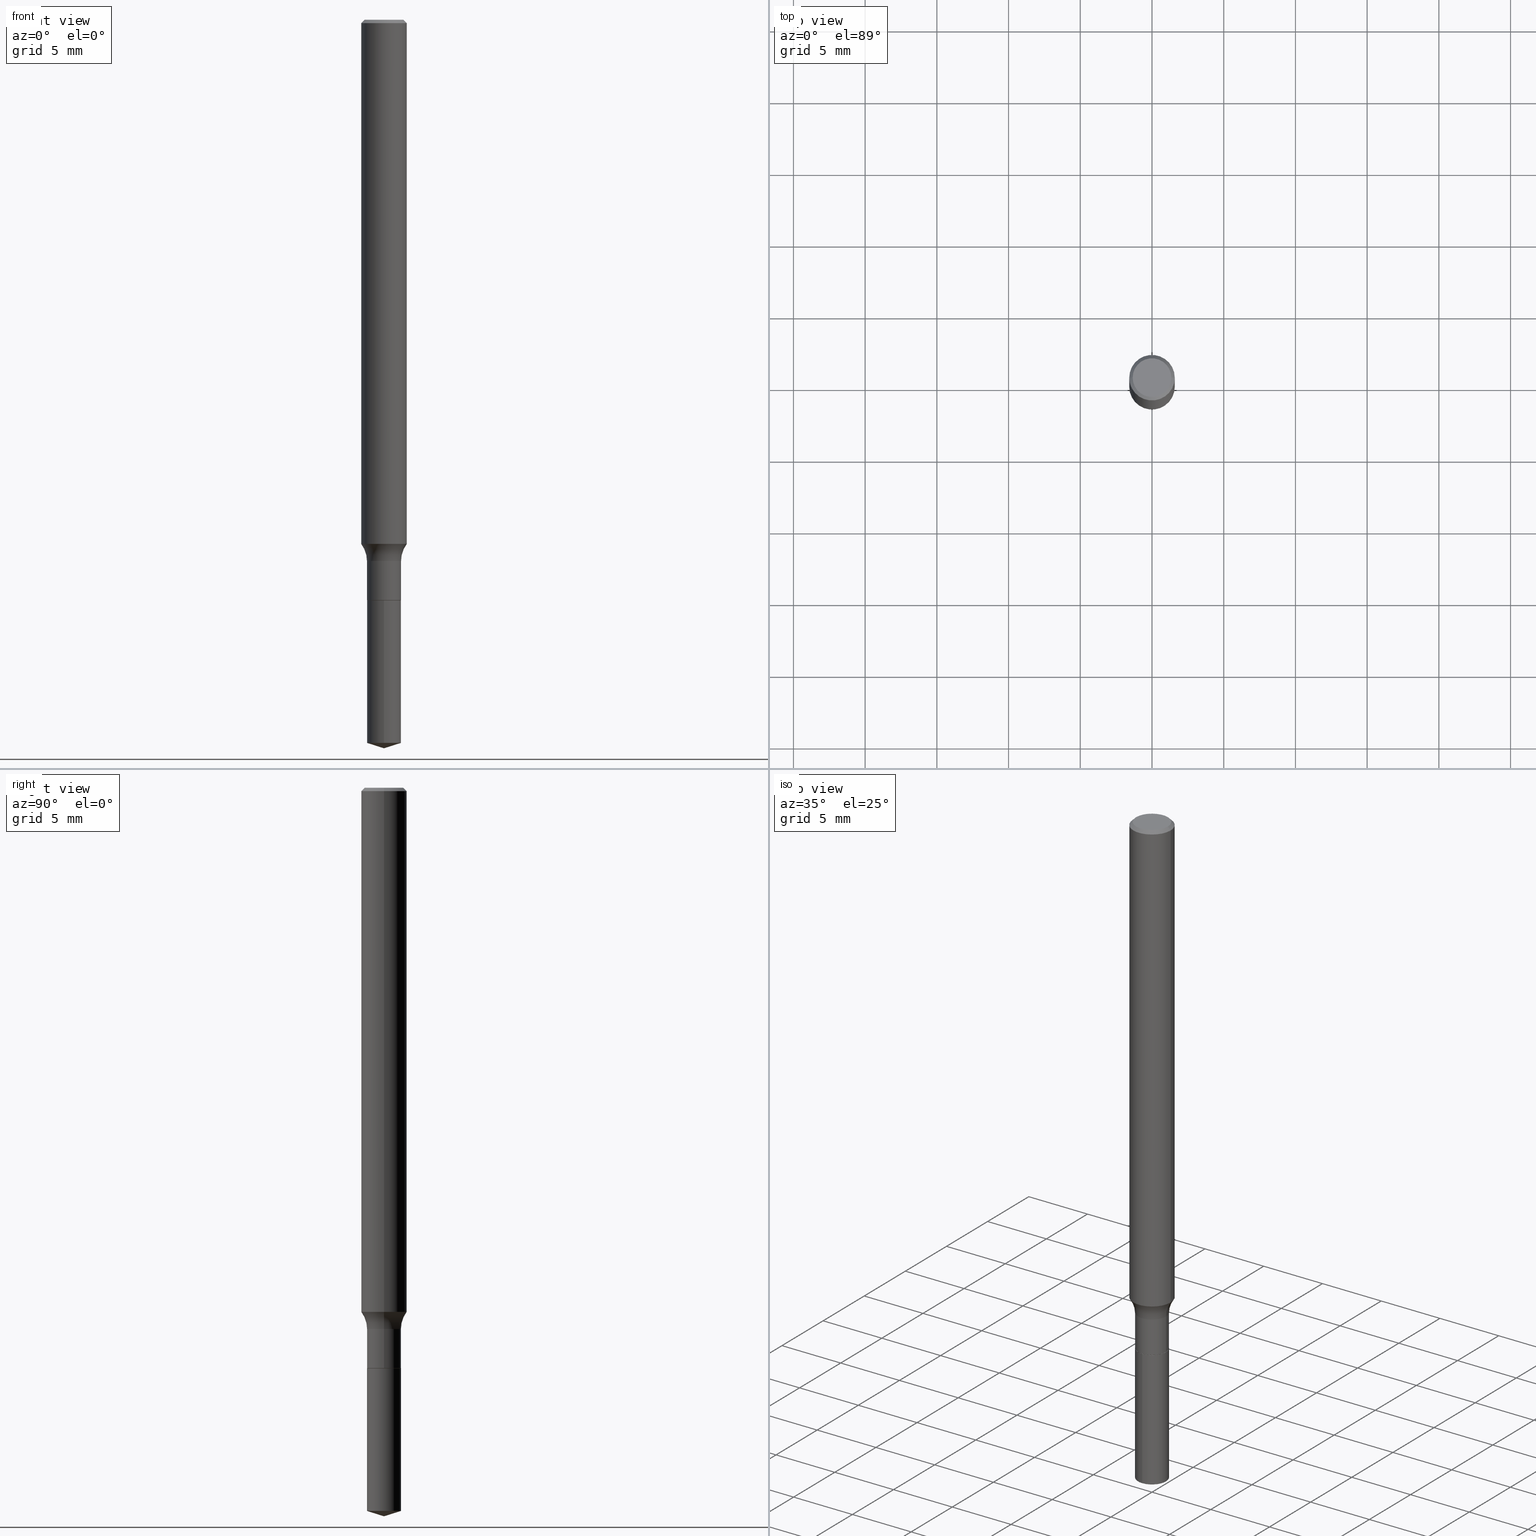
[diagram: canonical four-view strip — front | top / right | iso, engineering-drawing reading convention]
A machine part, canonical four-view strip (front | top / right | iso — engineering-drawing reading convention). The complete STEP part file that produces these views, byte-faithful:
ISO-10303-21;
HEADER;
FILE_DESCRIPTION (( 'STEP AP203' ),
    '1' );
FILE_NAME ('64510.STEP',
    '2024-04-19T15:42:12',
    ( '' ),
    ( '' ),
    'SwSTEP 2.0',
    'SolidWorks 2023',
    '' );
FILE_SCHEMA (( 'CONFIG_CONTROL_DESIGN' ));
ENDSEC;

DATA;
#1 = FACE_OUTER_BOUND ( 'NONE', #110, .T. ) ;
#2 = ORIENTED_EDGE ( 'NONE', *, *, #424, .F. ) ;
#3 = VECTOR ( 'NONE', #296, 39.37007874015748143 ) ;
#4 = VECTOR ( 'NONE', #304, 39.37007874015748143 ) ;
#5 = PERSON_AND_ORGANIZATION ( #410, #361 ) ;
#6 = CARTESIAN_POINT ( 'NONE',  ( 0.000000000000000000, 0.000000000000000000, 0.000000000000000000 ) ) ;
#7 = LOCAL_TIME ( 11, 42, 12.00000000000000000, #295 ) ;
#8 = LINE ( 'NONE', #15, #97 ) ;
#9 =( CONVERSION_BASED_UNIT ( 'INCH', #123 ) LENGTH_UNIT ( ) NAMED_UNIT ( #389 ) );
#10 = APPLICATION_CONTEXT ( 'configuration controlled 3d designs of mechanical parts and assemblies' ) ;
#11 = CLOSED_SHELL ( 'NONE', ( #108, #467, #93, #180, #133, #438, #324, #113, #57, #343, #442, #52 ) ) ;
#12 = AXIS2_PLACEMENT_3D ( 'NONE', #392, #436, #126 ) ;
#13 = CYLINDRICAL_SURFACE ( 'NONE', #12, 0.04674999999999999989 ) ;
#14 = CARTESIAN_POINT ( 'NONE',  ( 4.890909223419383260E-29, -6.983003332279764889E-15, -2.000000000000000000 ) ) ;
#15 = CARTESIAN_POINT ( 'NONE',  ( 0.04624999999999999944, -5.886637537289542748E-15, -1.593500000000000139 ) ) ;
#16 = EDGE_CURVE ( 'NONE', #233, #404, #164, .T. ) ;
#17 = CIRCLE ( 'NONE', #61, 0.06250000000000000000 ) ;
#18 = LOCAL_TIME ( 11, 42, 12.00000000000000000, #32 ) ;
#19 = PERSON_AND_ORGANIZATION ( #410, #361 ) ;
#20 = EDGE_LOOP ( 'NONE', ( #63, #370, #281, #320 ) ) ;
#21 = APPROVAL ( #489, 'UNSPECIFIED' ) ;
#22 = ORIENTED_EDGE ( 'NONE', *, *, #227, .T. ) ;
#23 = ORIENTED_EDGE ( 'NONE', *, *, #196, .T. ) ;
#24 = ORIENTED_EDGE ( 'NONE', *, *, #443, .F. ) ;
#25 = ORIENTED_EDGE ( 'NONE', *, *, #16, .T. ) ;
#26 = ORIENTED_EDGE ( 'NONE', *, *, #475, .F. ) ;
#27 = CIRCLE ( 'NONE', #78, 0.05312499999999999861 ) ;
#28 = EDGE_CURVE ( 'NONE', #325, #134, #415, .T. ) ;
#29 = ORIENTED_EDGE ( 'NONE', *, *, #122, .T. ) ;
#30 = VERTEX_POINT ( 'NONE', #256 ) ;
#31 = DIRECTION ( 'NONE',  ( -6.982962677686266711E-15, -1.000000000000000000, 5.843525120137461189E-15 ) ) ;
#32 = COORDINATED_UNIVERSAL_TIME_OFFSET ( 5, 0, .BEHIND. ) ;
#33 = FACE_OUTER_BOUND ( 'NONE', #168, .T. ) ;
#34 = PERSON_AND_ORGANIZATION ( #410, #361 ) ;
#35 = CARTESIAN_POINT ( 'NONE',  ( 3.895631808252923370E-29, -5.561929772777131251E-15, -1.593000000000000194 ) ) ;
#36 = FACE_OUTER_BOUND ( 'NONE', #277, .T. ) ;
#37 = VECTOR ( 'NONE', #393, 39.37007874015748143 ) ;
#38 = DIRECTION ( 'NONE',  ( 7.105427357601001859E-15, 1.000000000000000000, -3.491481338843145583E-15 ) ) ;
#39 = DIRECTION ( 'NONE',  ( -6.982962677686267499E-15, -1.000000000000000000, 3.500519750498745453E-15 ) ) ;
#40 = CARTESIAN_POINT ( 'NONE',  ( 0.04674999999999999989, -5.888383277958965040E-15, -1.593000000000000194 ) ) ;
#41 = FACE_OUTER_BOUND ( 'NONE', #54, .T. ) ;
#42 = ORIENTED_EDGE ( 'NONE', *, *, #100, .F. ) ;
#43 = CIRCLE ( 'NONE', #151, 0.04674999999999999295 ) ;
#44 = DESIGN_CONTEXT ( 'detailed design', #448, 'design' ) ;
#45 = DIRECTION ( 'NONE',  ( 1.000000000000000000, -6.982962677686272233E-15, 0.000000000000000000 ) ) ;
#46 = CARTESIAN_POINT ( 'NONE',  ( 3.896854542656015611E-29, -5.563675513446552755E-15, -1.593500000000000139 ) ) ;
#47 = EDGE_CURVE ( 'NONE', #59, #183, #77, .T. ) ;
#48 = AXIS2_PLACEMENT_3D ( 'NONE', #98, #458, #73 ) ;
#49 = LINE ( 'NONE', #347, #37 ) ;
#50 = DIRECTION ( 'NONE',  ( -2.445468806185136597E-29, 3.491481338843145583E-15, 1.000000000000000000 ) ) ;
#51 = CARTESIAN_POINT ( 'NONE',  ( 0.06250000000000000000, -4.615137624123754923E-16, -0.009375000000000074246 ) ) ;
#52 = ADVANCED_FACE ( 'NONE', ( #64 ), #229, .T. ) ;
#53 = ORIENTED_EDGE ( 'NONE', *, *, #391, .T. ) ;
#54 = EDGE_LOOP ( 'NONE', ( #26, #278, #228, #411 ) ) ;
#55 = AXIS2_PLACEMENT_3D ( 'NONE', #193, #344, #45 ) ;
#56 = ORIENTED_EDGE ( 'NONE', *, *, #382, .T. ) ;
#57 = ADVANCED_FACE ( 'NONE', ( #41 ), #359, .T. ) ;
#58 = DIRECTION ( 'NONE',  ( -2.445454611709691350E-29, 3.491501666139882444E-15, 1.000000000000000000 ) ) ;
#59 = VERTEX_POINT ( 'NONE', #40 ) ;
#60 = ORIENTED_EDGE ( 'NONE', *, *, #169, .T. ) ;
#61 = AXIS2_PLACEMENT_3D ( 'NONE', #62, #173, #138 ) ;
#62 = CARTESIAN_POINT ( 'NONE',  ( 2.292627005798583689E-31, -3.273263755165475115E-17, -0.009375000000000074246 ) ) ;
#63 = ORIENTED_EDGE ( 'NONE', *, *, #223, .F. ) ;
#64 = FACE_OUTER_BOUND ( 'NONE', #315, .T. ) ;
#65 = CARTESIAN_POINT ( 'NONE',  ( 3.633966645991112620E-29, -5.188341269520914499E-15, -1.485999999999999988 ) ) ;
#66 = DATE_AND_TIME ( #101, #152 ) ;
#67 = DIRECTION ( 'NONE',  ( 1.000000000000000000, -6.982962677686265133E-15, 0.000000000000000000 ) ) ;
#68 = DIRECTION ( 'NONE',  ( -2.445468806185136597E-29, 3.491481338843145583E-15, 1.000000000000000000 ) ) ;
#69 = CLOSED_SHELL ( 'NONE', ( #238, #75, #371, #287, #192 ) ) ;
#70 = VECTOR ( 'NONE', #330, 39.37007874015748143 ) ;
#71 = APPROVAL_STATUS ( 'not_yet_approved' ) ;
#72 = CARTESIAN_POINT ( 'NONE',  ( -3.264535051817940010E-16, -0.04675000000000557182, -1.593499999999999917 ) ) ;
#73 = DIRECTION ( 'NONE',  ( 1.000000000000000000, -6.982962677686267499E-15, 4.876176775795935793E-29 ) ) ;
#74 = LINE ( 'NONE', #342, #352 ) ;
#75 = ADVANCED_FACE ( 'NONE', ( #492 ), #327, .T. ) ;
#76 = CARTESIAN_POINT ( 'NONE',  ( 4.854885307300799577E-29, -6.931505443699056081E-15, -1.985259781619907349 ) ) ;
#77 = CIRCLE ( 'NONE', #297, 0.04674999999999999989 ) ;
#78 = AXIS2_PLACEMENT_3D ( 'NONE', #79, #50, #308 ) ;
#79 = CARTESIAN_POINT ( 'NONE',  ( -8.782355238379108562E-48, 1.253887571509288664E-33, 3.591276738499616421E-19 ) ) ;
#80 = CARTESIAN_POINT ( 'NONE',  ( 3.321787289678954497E-16, 0.04674999999999308875, -1.985259781619907793 ) ) ;
#81 = DIRECTION ( 'NONE',  ( -2.445454611709691350E-29, 3.491501666139882444E-15, 1.000000000000000000 ) ) ;
#82 = DIRECTION ( 'NONE',  ( 2.445468806185136597E-29, -3.491481338843145583E-15, -1.000000000000000000 ) ) ;
#83 = DIRECTION ( 'NONE',  ( 6.982962677686265922E-15, 1.000000000000000000, -3.491501666139882444E-15 ) ) ;
#84 = CARTESIAN_POINT ( 'NONE',  ( 0.000000000000000000, 0.000000000000000000, 0.000000000000000000 ) ) ;
#85 = CARTESIAN_POINT ( 'NONE',  ( 3.896854542656015611E-29, -5.563675513446552755E-15, -1.593500000000000139 ) ) ;
#86 = AXIS2_PLACEMENT_3D ( 'NONE', #121, #58, #31 ) ;
#87 = LOCAL_TIME ( 11, 42, 12.00000000000000000, #148 ) ;
#88 = CARTESIAN_POINT ( 'NONE',  ( 4.890909223419382139E-29, -6.983003332279764889E-15, -2.000000000000000000 ) ) ;
#89 = DIRECTION ( 'NONE',  ( -1.000000000000000000, 6.982962677686266711E-15, 0.000000000000000000 ) ) ;
#90 = EDGE_LOOP ( 'NONE', ( #112, #412, #204, #96 ) ) ;
#91 = AXIS2_PLACEMENT_3D ( 'NONE', #226, #220, #305 ) ;
#92 = ORIENTED_EDGE ( 'NONE', *, *, #472, .F. ) ;
#93 = ADVANCED_FACE ( 'NONE', ( #203 ), #149, .T. ) ;
#94 = ORIENTED_EDGE ( 'NONE', *, *, #227, .F. ) ;
#95 = DIRECTION ( 'NONE',  ( 1.000000000000000000, -6.982962677686266711E-15, 4.876176775795935793E-29 ) ) ;
#96 = ORIENTED_EDGE ( 'NONE', *, *, #355, .F. ) ;
#97 = VECTOR ( 'NONE', #351, 39.37007874015748143 ) ;
#98 = CARTESIAN_POINT ( 'NONE',  ( 0.000000000000000000, 0.000000000000000000, 0.000000000000000000 ) ) ;
#99 = DIRECTION ( 'NONE',  ( 1.000000000000000000, -6.982962677686266711E-15, 4.876153107228683844E-29 ) ) ;
#100 = EDGE_CURVE ( 'NONE', #463, #385, #176, .T. ) ;
#101 = CALENDAR_DATE ( 2024, 19, 4 ) ;
#102 = FACE_OUTER_BOUND ( 'NONE', #276, .T. ) ;
#103 = ORIENTED_EDGE ( 'NONE', *, *, #355, .T. ) ;
#104 = CARTESIAN_POINT ( 'NONE',  ( -0.1247500000000000137, -4.301939206660189322E-15, -1.485999999999999988 ) ) ;
#105 = CARTESIAN_POINT ( 'NONE',  ( -0.04624999999999999944, -5.232400270983395912E-15, -1.593500000000000139 ) ) ;
#106 = CIRCLE ( 'NONE', #446, 0.05312499999999999861 ) ;
#107 = DIRECTION ( 'NONE',  ( 1.000000000000000000, -6.982962677686272233E-15, 0.000000000000000000 ) ) ;
#108 = ADVANCED_FACE ( 'NONE', ( #213 ), #366, .T. ) ;
#109 = PLANE ( 'NONE',  #232 ) ;
#110 = EDGE_LOOP ( 'NONE', ( #236, #279, #405 ) ) ;
#111 = DIRECTION ( 'NONE',  ( -2.445454611709691350E-29, 3.491501666139882444E-15, 1.000000000000000000 ) ) ;
#112 = ORIENTED_EDGE ( 'NONE', *, *, #477, .T. ) ;
#113 = ADVANCED_FACE ( 'NONE', ( #102 ), #340, .T. ) ;
#114 = DIRECTION ( 'NONE',  ( 2.445454611709691070E-29, -3.491501666139882444E-15, -1.000000000000000000 ) ) ;
#115 = LINE ( 'NONE', #88, #479 ) ;
#116 = EDGE_CURVE ( 'NONE', #59, #463, #414, .T. ) ;
#117 = DIRECTION ( 'NONE',  ( -2.445454611709691350E-29, 3.491501666139882444E-15, 1.000000000000000000 ) ) ;
#118 = DIRECTION ( 'NONE',  ( 1.000000000000000000, -6.982962677686268288E-15, 0.000000000000000000 ) ) ;
#119 = DIRECTION ( 'NONE',  ( 0.000000000000000000, 0.000000000000000000, 1.000000000000000000 ) ) ;
#120 = UNCERTAINTY_MEASURE_WITH_UNIT (LENGTH_MEASURE( 1.000000000000000082E-05 ), #9, 'distance_accuracy_value', 'NONE');
#121 = CARTESIAN_POINT ( 'NONE',  ( 3.896854542656015611E-29, -5.563675513446552755E-15, -1.593500000000000139 ) ) ;
#122 = EDGE_CURVE ( 'NONE', #134, #385, #284, .T. ) ;
#123 = LENGTH_MEASURE_WITH_UNIT ( LENGTH_MEASURE( 0.02539999999999999897 ), #163 );
#124 = CONICAL_SURFACE ( 'NONE', #230, 124.8659371009135981, 1.265363707695888351 ) ;
#125 =( GEOMETRIC_REPRESENTATION_CONTEXT ( 3 ) GLOBAL_UNCERTAINTY_ASSIGNED_CONTEXT ( ( #120 ) ) GLOBAL_UNIT_ASSIGNED_CONTEXT ( ( #9, #264, #306 ) ) REPRESENTATION_CONTEXT ( 'NONE', 'WORKASPACE' ) );
#126 = DIRECTION ( 'NONE',  ( 1.000000000000000000, -6.982962677686266711E-15, 4.876176775795935793E-29 ) ) ;
#127 = VERTEX_POINT ( 'NONE', #239 ) ;
#128 = ORIENTED_EDGE ( 'NONE', *, *, #349, .T. ) ;
#129 = ORIENTED_EDGE ( 'NONE', *, *, #16, .F. ) ;
#130 = EDGE_CURVE ( 'NONE', #404, #183, #373, .T. ) ;
#131 = ORIENTED_EDGE ( 'NONE', *, *, #280, .T. ) ;
#132 = EDGE_LOOP ( 'NONE', ( #399, #22 ) ) ;
#133 = ADVANCED_FACE ( 'NONE', ( #33 ), #251, .T. ) ;
#134 = VERTEX_POINT ( 'NONE', #409 ) ;
#135 = EDGE_CURVE ( 'NONE', #478, #445, #17, .T. ) ;
#136 = ORIENTED_EDGE ( 'NONE', *, *, #47, .T. ) ;
#137 = SECURITY_CLASSIFICATION_LEVEL ( 'unclassified' ) ;
#138 = DIRECTION ( 'NONE',  ( 1.000000000000000000, -6.982962677686266711E-15, 0.000000000000000000 ) ) ;
#139 = DIRECTION ( 'NONE',  ( 1.000000000000000000, -6.982962677686265133E-15, 4.883557194083112340E-29 ) ) ;
#140 = AXIS2_PLACEMENT_3D ( 'NONE', #464, #147, #422 ) ;
#141 = SECURITY_CLASSIFICATION ( '', '', #137 ) ;
#142 = APPROVAL_DATE_TIME ( #322, #365 ) ;
#143 = DIRECTION ( 'NONE',  ( 1.000000000000000000, -6.982962677686276966E-15, 0.000000000000000000 ) ) ;
#144 = CARTESIAN_POINT ( 'NONE',  ( -8.782355238379108562E-48, 1.253887571509288664E-33, 3.591276738499616421E-19 ) ) ;
#145 = PERSON_AND_ORGANIZATION_ROLE ( 'design_supplier' ) ;
#146 = CARTESIAN_POINT ( 'NONE',  ( -0.04624999999999999944, -5.235049498157507113E-15, -1.593500000000000139 ) ) ;
#147 = DIRECTION ( 'NONE',  ( -2.445468806185136597E-29, 3.491481338843145583E-15, 1.000000000000000000 ) ) ;
#148 = COORDINATED_UNIVERSAL_TIME_OFFSET ( 5, 0, .BEHIND. ) ;
#149 = CYLINDRICAL_SURFACE ( 'NONE', #48, 0.06250000000000009714 ) ;
#150 = CARTESIAN_POINT ( 'NONE',  ( 0.06250000000000020817, -5.460679135430753923E-15, -1.439000664898319792 ) ) ;
#151 = AXIS2_PLACEMENT_3D ( 'NONE', #326, #68, #216 ) ;
#152 = LOCAL_TIME ( 11, 42, 12.00000000000000000, #207 ) ;
#153 = PERSON_AND_ORGANIZATION_ROLE ( 'classification_officer' ) ;
#154 = CARTESIAN_POINT ( 'NONE',  ( 3.896854542656015611E-29, -5.563675513446552755E-15, -1.593500000000000139 ) ) ;
#155 = EDGE_CURVE ( 'NONE', #460, #318, #190, .T. ) ;
#156 = AXIS2_PLACEMENT_3D ( 'NONE', #243, #333, #143 ) ;
#157 = AXIS2_PLACEMENT_3D ( 'NONE', #46, #159, #310 ) ;
#158 = CARTESIAN_POINT ( 'NONE',  ( 3.895631808252923370E-29, -5.561929772777131251E-15, -1.593000000000000194 ) ) ;
#159 = DIRECTION ( 'NONE',  ( -2.438088387897960049E-29, 3.491481338843145188E-15, 1.000000000000000000 ) ) ;
#160 = FACE_OUTER_BOUND ( 'NONE', #406, .T. ) ;
#161 = LINE ( 'NONE', #51, #225 ) ;
#162 = LINE ( 'NONE', #386, #4 ) ;
#163 =( LENGTH_UNIT ( ) NAMED_UNIT ( * ) SI_UNIT ( $, .METRE. ) );
#164 = CIRCLE ( 'NONE', #484, 0.04624999999999999944 ) ;
#165 = CONICAL_SURFACE ( 'NONE', #451, 0.06250000000000000000, 0.7853981633974445042 ) ;
#166 = APPROVAL_PERSON_ORGANIZATION ( #288, #259, #420 ) ;
#167 = ORIENTED_EDGE ( 'NONE', *, *, #47, .F. ) ;
#168 = EDGE_LOOP ( 'NONE', ( #136, #60, #42, #240 ) ) ;
#169 = EDGE_CURVE ( 'NONE', #183, #385, #162, .T. ) ;
#170 = ORIENTED_EDGE ( 'NONE', *, *, #169, .F. ) ;
#171 = ORIENTED_EDGE ( 'NONE', *, *, #28, .F. ) ;
#172 = CALENDAR_DATE ( 2024, 19, 4 ) ;
#173 = DIRECTION ( 'NONE',  ( -2.445468806185136597E-29, 3.491481338843145583E-15, 1.000000000000000000 ) ) ;
#174 = DATE_TIME_ROLE ( 'creation_date' ) ;
#175 = DIRECTION ( 'NONE',  ( 1.000000000000000000, -6.982962677686265133E-15, 0.000000000000000000 ) ) ;
#176 = CIRCLE ( 'NONE', #156, 0.04674999999999999295 ) ;
#177 = EDGE_LOOP ( 'NONE', ( #24, #56, #331 ) ) ;
#178 = CIRCLE ( 'NONE', #439, 0.06250000000000000000 ) ;
#179 = DIRECTION ( 'NONE',  ( -2.445454611709691350E-29, 3.491501666139882444E-15, 1.000000000000000000 ) ) ;
#180 = ADVANCED_FACE ( 'NONE', ( #160 ), #224, .F. ) ;
#181 = DIRECTION ( 'NONE',  ( 2.445468806185136597E-29, -3.491481338843145583E-15, -1.000000000000000000 ) ) ;
#182 = CARTESIAN_POINT ( 'NONE',  ( 0.04674999999999999989, -3.264535051818329510E-16, 2.279612642684599927E-30 ) ) ;
#183 = VERTEX_POINT ( 'NONE', #260 ) ;
#184 = CC_DESIGN_SECURITY_CLASSIFICATION ( #141, ( #440 ) ) ;
#185 = FACE_OUTER_BOUND ( 'NONE', #132, .T. ) ;
#186 = DIRECTION ( 'NONE',  ( -2.445468806185136877E-29, 3.491481338843145188E-15, 1.000000000000000000 ) ) ;
#187 = CARTESIAN_POINT ( 'NONE',  ( -0.06250000000000000000, 4.037025298037369491E-16, -0.009375000000000074246 ) ) ;
#188 = DIRECTION ( 'NONE',  ( -6.982962677686266711E-15, -1.000000000000000000, 3.491481338843145583E-15 ) ) ;
#189 = PRODUCT_DEFINITION_SHAPE ( 'NONE', 'NONE',  #302 ) ;
#190 = CIRCLE ( 'NONE', #461, 0.04674999999999999989 ) ;
#191 = DIRECTION ( 'NONE',  ( -2.445454611709691350E-29, 3.491501666139882444E-15, 1.000000000000000000 ) ) ;
#192 = ADVANCED_FACE ( 'NONE', ( #185 ), #425, .F. ) ;
#193 = CARTESIAN_POINT ( 'NONE',  ( 3.519031238088511637E-29, -5.024243968075361465E-15, -1.439000664898319792 ) ) ;
#194 = LINE ( 'NONE', #430, #416 ) ;
#195 = TOROIDAL_SURFACE ( 'NONE', #298, 0.1247500000000000137, 0.07800000000000002764 ) ;
#196 = EDGE_CURVE ( 'NONE', #183, #59, #360, .T. ) ;
#197 = ORIENTED_EDGE ( 'NONE', *, *, #241, .T. ) ;
#198 = EDGE_LOOP ( 'NONE', ( #129, #362 ) ) ;
#199 = CIRCLE ( 'NONE', #217, 0.07800000000000002764 ) ;
#200 = APPROVAL_PERSON_ORGANIZATION ( #328, #365, #300 ) ;
#201 = CC_DESIGN_PERSON_AND_ORGANIZATION_ASSIGNMENT ( #5, #202, ( #302 ) ) ;
#202 = PERSON_AND_ORGANIZATION_ROLE ( 'creator' ) ;
#203 = FACE_OUTER_BOUND ( 'NONE', #426, .T. ) ;
#204 = ORIENTED_EDGE ( 'NONE', *, *, #317, .F. ) ;
#205 = CARTESIAN_POINT ( 'NONE',  ( 3.896854542656015611E-29, -5.563675513446552755E-15, -1.593500000000000139 ) ) ;
#206 = EDGE_LOOP ( 'NONE', ( #314, #171, #423, #235 ) ) ;
#207 = COORDINATED_UNIVERSAL_TIME_OFFSET ( 5, 0, .BEHIND. ) ;
#208 = AXIS2_PLACEMENT_3D ( 'NONE', #334, #294, #381 ) ;
#209 = CALENDAR_DATE ( 2024, 19, 4 ) ;
#210 = DIRECTION ( 'NONE',  ( -2.445468806185136597E-29, 3.491481338843145583E-15, 1.000000000000000000 ) ) ;
#211 = CARTESIAN_POINT ( 'NONE',  ( -4.391177619189554281E-48, 6.269437857546443321E-34, 1.795638369249808211E-19 ) ) ;
#212 = ORIENTED_EDGE ( 'NONE', *, *, #407, .F. ) ;
#213 = FACE_OUTER_BOUND ( 'NONE', #345, .T. ) ;
#214 = EDGE_CURVE ( 'NONE', #445, #478, #178, .T. ) ;
#215 = DIRECTION ( 'NONE',  ( -0.7071067811865447972, 2.468850131082228267E-15, -0.7071067811865502373 ) ) ;
#216 = DIRECTION ( 'NONE',  ( 1.000000000000000000, -6.982962677686276966E-15, 0.000000000000000000 ) ) ;
#217 = AXIS2_PLACEMENT_3D ( 'NONE', #218, #188, #118 ) ;
#218 = CARTESIAN_POINT ( 'NONE',  ( 0.1247500000000000137, -6.059465863562275545E-15, -1.485999999999999988 ) ) ;
#219 = DIRECTION ( 'NONE',  ( 1.000000000000000000, -6.982962677686266711E-15, 0.000000000000000000 ) ) ;
#220 = DIRECTION ( 'NONE',  ( -2.445454611709691350E-29, 3.491501666139882444E-15, 1.000000000000000000 ) ) ;
#221 = DIRECTION ( 'NONE',  ( 1.000000000000000000, -6.982962677686276177E-15, 0.000000000000000000 ) ) ;
#222 = MECHANICAL_CONTEXT ( 'NONE', #10, 'mechanical' ) ;
#223 = EDGE_CURVE ( 'NONE', #127, #30, #27, .T. ) ;
#224 = TOROIDAL_SURFACE ( 'NONE', #476, 0.1247500000000000137, 0.07800000000000002764 ) ;
#225 = VECTOR ( 'NONE', #346, 39.37007874015748143 ) ;
#226 = CARTESIAN_POINT ( 'NONE',  ( 4.854885307300799577E-29, -6.931505443699056081E-15, -1.985259781619907349 ) ) ;
#227 = EDGE_CURVE ( 'NONE', #384, #363, #307, .T. ) ;
#228 = ORIENTED_EDGE ( 'NONE', *, *, #274, .T. ) ;
#229 = CONICAL_SURFACE ( 'NONE', #395, 0.04624999999999999944, 0.7853981633975507526 ) ;
#230 = AXIS2_PLACEMENT_3D ( 'NONE', #244, #488, #39 ) ;
#231 = CC_DESIGN_DATE_AND_TIME_ASSIGNMENT ( #417, #372, ( #141 ) ) ;
#232 = AXIS2_PLACEMENT_3D ( 'NONE', #211, #286, #377 ) ;
#233 = VERTEX_POINT ( 'NONE', #266 ) ;
#234 = PERSON_AND_ORGANIZATION_ROLE ( 'design_owner' ) ;
#235 = ORIENTED_EDGE ( 'NONE', *, *, #100, .T. ) ;
#236 = ORIENTED_EDGE ( 'NONE', *, *, #382, .F. ) ;
#237 = ORIENTED_EDGE ( 'NONE', *, *, #241, .F. ) ;
#238 = ADVANCED_FACE ( 'NONE', ( #432 ), #353, .T. ) ;
#239 = CARTESIAN_POINT ( 'NONE',  ( 0.05312499999999999861, -4.129888592719939842E-16, 3.591276738527027701E-19 ) ) ;
#240 = ORIENTED_EDGE ( 'NONE', *, *, #116, .F. ) ;
#241 = EDGE_CURVE ( 'NONE', #134, #325, #265, .T. ) ;
#242 = DATE_AND_TIME ( #172, #18 ) ;
#243 = CARTESIAN_POINT ( 'NONE',  ( 3.633966645991112620E-29, -5.188341269520914499E-15, -1.485999999999999988 ) ) ;
#244 = CARTESIAN_POINT ( 'NONE',  ( -9.138680877617578726E-28, 1.304777245765858029E-13, 37.37007874015748143 ) ) ;
#245 = PERSON_AND_ORGANIZATION_ROLE ( 'creator' ) ;
#246 = CARTESIAN_POINT ( 'NONE',  ( 3.519031238088511637E-29, -5.024243968075361465E-15, -1.439000664898319792 ) ) ;
#247 = FACE_OUTER_BOUND ( 'NONE', #206, .T. ) ;
#248 = ORIENTED_EDGE ( 'NONE', *, *, #116, .T. ) ;
#249 = CC_DESIGN_DATE_AND_TIME_ASSIGNMENT ( #242, #174, ( #302 ) ) ;
#250 = PERSON_AND_ORGANIZATION ( #410, #361 ) ;
#251 = CYLINDRICAL_SURFACE ( 'NONE', #253, 0.04674999999999999989 ) ;
#252 = AXIS2_PLACEMENT_3D ( 'NONE', #246, #379, #107 ) ;
#253 = AXIS2_PLACEMENT_3D ( 'NONE', #6, #301, #95 ) ;
#254 = LOCAL_TIME ( 11, 42, 12.00000000000000000, #486 ) ;
#255 = APPROVAL_DATE_TIME ( #66, #21 ) ;
#256 = CARTESIAN_POINT ( 'NONE',  ( -0.05312499999999999861, 3.873362110279099094E-16, 3.591276738473101181E-19 ) ) ;
#257 = LINE ( 'NONE', #290, #387 ) ;
#258 = VERTEX_POINT ( 'NONE', #14 ) ;
#259 = APPROVAL ( #336, 'UNSPECIFIED' ) ;
#260 = CARTESIAN_POINT ( 'NONE',  ( -0.04674999999999999989, -5.042956792181175940E-15, -1.593000000000000194 ) ) ;
#261 = ORIENTED_EDGE ( 'NONE', *, *, #196, .F. ) ;
#262 = DIRECTION ( 'NONE',  ( -2.445468806185136597E-29, 3.491481338843145583E-15, 1.000000000000000000 ) ) ;
#263 = EDGE_LOOP ( 'NONE', ( #212, #321, #103, #94 ) ) ;
#264 =( NAMED_UNIT ( * ) PLANE_ANGLE_UNIT ( ) SI_UNIT ( $, .RADIAN. ) );
#265 = CIRCLE ( 'NONE', #55, 0.06250000000000019429 ) ;
#266 = CARTESIAN_POINT ( 'NONE',  ( 0.04624999999999999944, -5.886637537289542748E-15, -1.593500000000000139 ) ) ;
#267 = MANIFOLD_SOLID_BREP ( 'Body-Move/Copy2[2]', #11 ) ;
#268 = DIRECTION ( 'NONE',  ( -6.982962677686266711E-15, -1.000000000000000000, 5.843525120137461189E-15 ) ) ;
#269 = DIRECTION ( 'NONE',  ( 1.000000000000000000, 0.000000000000000000, 0.000000000000000000 ) ) ;
#270 = ADVANCED_BREP_SHAPE_REPRESENTATION ( '64510', ( #468, #267, #368 ), #125 ) ;
#271 = DIRECTION ( 'NONE',  ( 1.000000000000000000, -6.982962677686265133E-15, 4.883557194083112340E-29 ) ) ;
#272 = AXIS2_PLACEMENT_3D ( 'NONE', #104, #38, #490 ) ;
#273 = FACE_OUTER_BOUND ( 'NONE', #483, .T. ) ;
#274 = EDGE_CURVE ( 'NONE', #30, #478, #434, .T. ) ;
#275 = ORIENTED_EDGE ( 'NONE', *, *, #223, .T. ) ;
#276 = EDGE_LOOP ( 'NONE', ( #2, #197, #131, #364 ) ) ;
#277 = EDGE_LOOP ( 'NONE', ( #128, #275 ) ) ;
#278 = ORIENTED_EDGE ( 'NONE', *, *, #349, .F. ) ;
#279 = ORIENTED_EDGE ( 'NONE', *, *, #443, .T. ) ;
#280 = EDGE_CURVE ( 'NONE', #325, #445, #49, .T. ) ;
#281 = ORIENTED_EDGE ( 'NONE', *, *, #214, .T. ) ;
#282 = PERSON_AND_ORGANIZATION ( #410, #361 ) ;
#283 = ORIENTED_EDGE ( 'NONE', *, *, #130, .F. ) ;
#284 = CIRCLE ( 'NONE', #272, 0.07800000000000002764 ) ;
#285 = CIRCLE ( 'NONE', #91, 0.04674999999999999989 ) ;
#286 = DIRECTION ( 'NONE',  ( 2.438088387897960049E-29, -3.491481338843145188E-15, -1.000000000000000000 ) ) ;
#287 = ADVANCED_FACE ( 'NONE', ( #356 ), #474, .T. ) ;
#288 = PERSON_AND_ORGANIZATION ( #410, #361 ) ;
#289 = CARTESIAN_POINT ( 'NONE',  ( -9.138680877617578726E-28, 1.304777245765858029E-13, 37.37007874015748143 ) ) ;
#290 = CARTESIAN_POINT ( 'NONE',  ( 4.890954857894674452E-29, -6.982938549185063388E-15, -2.000000000000000000 ) ) ;
#291 = ORIENTED_EDGE ( 'NONE', *, *, #311, .T. ) ;
#292 = CC_DESIGN_PERSON_AND_ORGANIZATION_ASSIGNMENT ( #19, #234, ( #480 ) ) ;
#293 = DIRECTION ( 'NONE',  ( -0.7071067811866199593, 7.493145998870616062E-15, 0.7071067811864750752 ) ) ;
#294 = DIRECTION ( 'NONE',  ( -2.445454611709691350E-29, 3.491501666139882444E-15, 1.000000000000000000 ) ) ;
#295 = COORDINATED_UNIVERSAL_TIME_OFFSET ( 5, 0, .BEHIND. ) ;
#296 = DIRECTION ( 'NONE',  ( -2.445468806185136877E-29, 3.491481338843145188E-15, 1.000000000000000000 ) ) ;
#297 = AXIS2_PLACEMENT_3D ( 'NONE', #35, #374, #482 ) ;
#298 = AXIS2_PLACEMENT_3D ( 'NONE', #65, #459, #139 ) ;
#299 = DIRECTION ( 'NONE',  ( 6.776566513254250249E-15, 0.9537169507482278208, 0.3007057995042703435 ) ) ;
#300 = APPROVAL_ROLE ( '' ) ;
#301 = DIRECTION ( 'NONE',  ( -2.445468806185136597E-29, 3.491481338843145583E-15, 1.000000000000000000 ) ) ;
#302 = PRODUCT_DEFINITION ( 'UNKNOWN', '', #440, #44 ) ;
#303 = CARTESIAN_POINT ( 'NONE',  ( 3.321787289678954004E-16, 0.04674999999999443490, -1.593500000000000361 ) ) ;
#304 = DIRECTION ( 'NONE',  ( -2.445468806185136877E-29, 3.491481338843145188E-15, 1.000000000000000000 ) ) ;
#305 = DIRECTION ( 'NONE',  ( -6.982962677686266711E-15, -1.000000000000000000, 5.843525120137461189E-15 ) ) ;
#306 =( NAMED_UNIT ( * ) SI_UNIT ( $, .STERADIAN. ) SOLID_ANGLE_UNIT ( ) );
#307 = CIRCLE ( 'NONE', #313, 0.04674999999999999989 ) ;
#308 = DIRECTION ( 'NONE',  ( 1.000000000000000000, -6.982962677686266711E-15, 4.876153107228683844E-29 ) ) ;
#309 = CARTESIAN_POINT ( 'NONE',  ( 3.896854542656015611E-29, -5.563675513446552755E-15, -1.593500000000000139 ) ) ;
#310 = DIRECTION ( 'NONE',  ( 1.000000000000000000, -6.982962677686265922E-15, 4.876176775795935793E-29 ) ) ;
#311 = EDGE_CURVE ( 'NONE', #385, #463, #43, .T. ) ;
#312 = CARTESIAN_POINT ( 'NONE',  ( 0.06250000000000000000, -4.691678049070464390E-16, -0.009375000000000074246 ) ) ;
#313 = AXIS2_PLACEMENT_3D ( 'NONE', #309, #117, #390 ) ;
#314 = ORIENTED_EDGE ( 'NONE', *, *, #122, .F. ) ;
#315 = EDGE_LOOP ( 'NONE', ( #283, #53, #401, #261 ) ) ;
#316 = ORIENTED_EDGE ( 'NONE', *, *, #130, .T. ) ;
#317 = EDGE_CURVE ( 'NONE', #363, #384, #485, .T. ) ;
#318 = VERTEX_POINT ( 'NONE', #457 ) ;
#319 = AXIS2_PLACEMENT_3D ( 'NONE', #383, #323, #375 ) ;
#320 = ORIENTED_EDGE ( 'NONE', *, *, #274, .F. ) ;
#321 = ORIENTED_EDGE ( 'NONE', *, *, #155, .T. ) ;
#322 = DATE_AND_TIME ( #339, #254 ) ;
#323 = DIRECTION ( 'NONE',  ( -2.445468806185136597E-29, 3.491481338843145583E-15, 1.000000000000000000 ) ) ;
#324 = ADVANCED_FACE ( 'NONE', ( #247 ), #195, .F. ) ;
#325 = VERTEX_POINT ( 'NONE', #150 ) ;
#326 = CARTESIAN_POINT ( 'NONE',  ( 3.633966645991112620E-29, -5.188341269520914499E-15, -1.485999999999999988 ) ) ;
#327 = CONICAL_SURFACE ( 'NONE', #402, 124.8659371009135981, 1.265363707695888351 ) ;
#328 = PERSON_AND_ORGANIZATION ( #410, #361 ) ;
#329 = DIRECTION ( 'NONE',  ( -2.445468806185136597E-29, 3.491481338843145583E-15, 1.000000000000000000 ) ) ;
#330 = DIRECTION ( 'NONE',  ( -2.445454611709691350E-29, 3.491501666139882444E-15, 1.000000000000000000 ) ) ;
#331 = ORIENTED_EDGE ( 'NONE', *, *, #477, .F. ) ;
#332 = CC_DESIGN_PERSON_AND_ORGANIZATION_ASSIGNMENT ( #282, #153, ( #141 ) ) ;
#333 = DIRECTION ( 'NONE',  ( -2.445468806185136597E-29, 3.491481338843145583E-15, 1.000000000000000000 ) ) ;
#334 = CARTESIAN_POINT ( 'NONE',  ( 3.896854542656015611E-29, -5.563675513446552755E-15, -1.593500000000000139 ) ) ;
#335 = ORIENTED_EDGE ( 'NONE', *, *, #280, .F. ) ;
#336 = APPROVAL_STATUS ( 'not_yet_approved' ) ;
#337 = DIRECTION ( 'NONE',  ( 1.000000000000000000, -6.982962677686265133E-15, 0.000000000000000000 ) ) ;
#338 = LINE ( 'NONE', #72, #70 ) ;
#339 = CALENDAR_DATE ( 2024, 19, 4 ) ;
#340 = CYLINDRICAL_SURFACE ( 'NONE', #319, 0.06250000000000009714 ) ;
#341 = AXIS2_PLACEMENT_3D ( 'NONE', #473, #81, #268 ) ;
#342 = CARTESIAN_POINT ( 'NONE',  ( 3.321787289678857368E-16, 0.04674999999999443490, -1.593500000000000361 ) ) ;
#343 = ADVANCED_FACE ( 'NONE', ( #36 ), #109, .F. ) ;
#344 = DIRECTION ( 'NONE',  ( -2.445468806185136597E-29, 3.491481338843145583E-15, 1.000000000000000000 ) ) ;
#345 = EDGE_LOOP ( 'NONE', ( #25, #316, #167, #380 ) ) ;
#346 = DIRECTION ( 'NONE',  ( 0.7071067811865447972, -7.319954787623246579E-15, -0.7071067811865502373 ) ) ;
#347 = CARTESIAN_POINT ( 'NONE',  ( 0.06250000000000009714, -4.364351673553924090E-16, 3.047610484872464775E-30 ) ) ;
#348 = CARTESIAN_POINT ( 'NONE',  ( -0.06250000000000000000, -2.084399092963443430E-15, -0.009375000000000074246 ) ) ;
#349 = EDGE_CURVE ( 'NONE', #30, #127, #106, .T. ) ;
#350 = CARTESIAN_POINT ( 'NONE',  ( 2.292627005798583689E-31, -3.273263755165475115E-17, -0.009375000000000074246 ) ) ;
#351 = DIRECTION ( 'NONE',  ( 0.7071067811866199593, -2.468850131083015945E-15, 0.7071067811864750752 ) ) ;
#352 = VECTOR ( 'NONE', #191, 39.37007874015748143 ) ;
#353 = CYLINDRICAL_SURFACE ( 'NONE', #341, 0.04674999999999999989 ) ;
#354 = DIRECTION ( 'NONE',  ( -6.659769872151624989E-15, -0.9537169507482257114, 0.3007057995042770049 ) ) ;
#355 = EDGE_CURVE ( 'NONE', #318, #363, #338, .T. ) ;
#356 = FACE_OUTER_BOUND ( 'NONE', #263, .T. ) ;
#357 = CARTESIAN_POINT ( 'NONE',  ( 0.04674999999999999295, -5.514794774702747499E-15, -1.485999999999999988 ) ) ;
#358 = ORIENTED_EDGE ( 'NONE', *, *, #214, .F. ) ;
#359 = CONICAL_SURFACE ( 'NONE', #428, 0.06250000000000000000, 0.7853981633974445042 ) ;
#360 = CIRCLE ( 'NONE', #429, 0.04674999999999999989 ) ;
#361 = ORGANIZATION ( 'UNSPECIFIED', 'UNSPECIFIED', '' ) ;
#362 = ORIENTED_EDGE ( 'NONE', *, *, #391, .F. ) ;
#363 = VERTEX_POINT ( 'NONE', #491 ) ;
#364 = ORIENTED_EDGE ( 'NONE', *, *, #135, .F. ) ;
#365 = APPROVAL ( #71, 'UNSPECIFIED' ) ;
#366 = CONICAL_SURFACE ( 'NONE', #437, 0.04624999999999999944, 0.7853981633975507526 ) ;
#367 = VECTOR ( 'NONE', #293, 39.37007874015748143 ) ;
#368 = AXIS2_PLACEMENT_3D ( 'NONE', #84, #119, #269 ) ;
#369 = ORIENTED_EDGE ( 'NONE', *, *, #424, .T. ) ;
#370 = ORIENTED_EDGE ( 'NONE', *, *, #475, .T. ) ;
#371 = ADVANCED_FACE ( 'NONE', ( #1 ), #124, .T. ) ;
#372 = DATE_TIME_ROLE ( 'classification_date' ) ;
#373 = LINE ( 'NONE', #146, #367 ) ;
#374 = DIRECTION ( 'NONE',  ( -2.445468806185136597E-29, 3.491481338843145583E-15, 1.000000000000000000 ) ) ;
#375 = DIRECTION ( 'NONE',  ( 1.000000000000000000, -6.982962677686267499E-15, 4.876176775795935793E-29 ) ) ;
#376 = APPROVAL_PERSON_ORGANIZATION ( #34, #21, #462 ) ;
#377 = DIRECTION ( 'NONE',  ( -1.000000000000000000, 6.982962677686265922E-15, -4.876176775795935793E-29 ) ) ;
#378 = DATE_AND_TIME ( #209, #7 ) ;
#379 = DIRECTION ( 'NONE',  ( -2.445468806185136597E-29, 3.491481338843145583E-15, 1.000000000000000000 ) ) ;
#380 = ORIENTED_EDGE ( 'NONE', *, *, #427, .F. ) ;
#381 = DIRECTION ( 'NONE',  ( -6.982962677686266711E-15, -1.000000000000000000, 5.843525120137461189E-15 ) ) ;
#382 = EDGE_CURVE ( 'NONE', #258, #460, #257, .T. ) ;
#383 = CARTESIAN_POINT ( 'NONE',  ( 0.000000000000000000, 0.000000000000000000, 0.000000000000000000 ) ) ;
#384 = VERTEX_POINT ( 'NONE', #303 ) ;
#385 = VERTEX_POINT ( 'NONE', #466 ) ;
#386 = CARTESIAN_POINT ( 'NONE',  ( -0.04674999999999999989, 3.321787289678468361E-16, -2.299602154694168275E-30 ) ) ;
#387 = VECTOR ( 'NONE', #299, 39.37007874015748854 ) ;
#388 = CC_DESIGN_APPROVAL ( #259, ( #141 ) ) ;
#389 = DIMENSIONAL_EXPONENTS ( 1.000000000000000000, 0.000000000000000000, 0.000000000000000000, 0.000000000000000000, 0.000000000000000000, 0.000000000000000000, 0.000000000000000000 ) ;
#390 = DIRECTION ( 'NONE',  ( -6.982962677686266711E-15, -1.000000000000000000, 5.843525120137461189E-15 ) ) ;
#391 = EDGE_CURVE ( 'NONE', #404, #233, #408, .T. ) ;
#392 = CARTESIAN_POINT ( 'NONE',  ( 0.000000000000000000, 0.000000000000000000, 0.000000000000000000 ) ) ;
#393 = DIRECTION ( 'NONE',  ( -2.445468806185136877E-29, 3.491481338843145188E-15, 1.000000000000000000 ) ) ;
#394 = DIRECTION ( 'NONE',  ( -2.445468806185136597E-29, 3.491481338843145583E-15, 1.000000000000000000 ) ) ;
#395 = AXIS2_PLACEMENT_3D ( 'NONE', #421, #329, #175 ) ;
#396 = DIRECTION ( 'NONE',  ( -2.445468806185136597E-29, 3.491481338843145583E-15, 1.000000000000000000 ) ) ;
#397 = FACE_OUTER_BOUND ( 'NONE', #20, .T. ) ;
#398 = CARTESIAN_POINT ( 'NONE',  ( 2.292627005798583689E-31, -3.273263755165475115E-17, -0.009375000000000074246 ) ) ;
#399 = ORIENTED_EDGE ( 'NONE', *, *, #317, .T. ) ;
#400 = PRODUCT_RELATED_PRODUCT_CATEGORY ( 'detail', '', ( #480 ) ) ;
#401 = ORIENTED_EDGE ( 'NONE', *, *, #427, .T. ) ;
#402 = AXIS2_PLACEMENT_3D ( 'NONE', #289, #179, #418 ) ;
#403 = AXIS2_PLACEMENT_3D ( 'NONE', #85, #114, #83 ) ;
#404 = VERTEX_POINT ( 'NONE', #105 ) ;
#405 = ORIENTED_EDGE ( 'NONE', *, *, #155, .F. ) ;
#406 = EDGE_LOOP ( 'NONE', ( #237, #29, #291, #92 ) ) ;
#407 = EDGE_CURVE ( 'NONE', #460, #384, #74, .T. ) ;
#408 = CIRCLE ( 'NONE', #140, 0.04624999999999999944 ) ;
#409 = CARTESIAN_POINT ( 'NONE',  ( -0.06250000000000020817, -4.580154758225297271E-15, -1.439000664898319792 ) ) ;
#410 = PERSON ( 'UNSPECIFIED', 'UNSPECIFIED', 'UNSPECIFIED', ('UNSPECIFIED'), ('UNSPECIFIED'), ('UNSPECIFIED') ) ;
#411 = ORIENTED_EDGE ( 'NONE', *, *, #135, .T. ) ;
#412 = ORIENTED_EDGE ( 'NONE', *, *, #407, .T. ) ;
#413 = APPROVAL_DATE_TIME ( #378, #259 ) ;
#414 = LINE ( 'NONE', #182, #3 ) ;
#415 = CIRCLE ( 'NONE', #252, 0.06250000000000019429 ) ;
#416 = VECTOR ( 'NONE', #186, 39.37007874015748143 ) ;
#417 = DATE_AND_TIME ( #452, #87 ) ;
#418 = DIRECTION ( 'NONE',  ( -6.982962677686267499E-15, -1.000000000000000000, 3.500519750498745453E-15 ) ) ;
#419 = CC_DESIGN_APPROVAL ( #365, ( #440 ) ) ;
#420 = APPROVAL_ROLE ( '' ) ;
#421 = CARTESIAN_POINT ( 'NONE',  ( 3.896854542656015611E-29, -5.563675513446552755E-15, -1.593500000000000139 ) ) ;
#422 = DIRECTION ( 'NONE',  ( 1.000000000000000000, -6.982962677686265133E-15, 0.000000000000000000 ) ) ;
#423 = ORIENTED_EDGE ( 'NONE', *, *, #472, .T. ) ;
#424 = EDGE_CURVE ( 'NONE', #134, #478, #194, .T. ) ;
#425 = PLANE ( 'NONE',  #403 ) ;
#426 = EDGE_LOOP ( 'NONE', ( #465, #369, #358, #335 ) ) ;
#427 = EDGE_CURVE ( 'NONE', #233, #59, #8, .T. ) ;
#428 = AXIS2_PLACEMENT_3D ( 'NONE', #453, #181, #487 ) ;
#429 = AXIS2_PLACEMENT_3D ( 'NONE', #158, #396, #221 ) ;
#430 = CARTESIAN_POINT ( 'NONE',  ( -0.06250000000000009714, 4.440892098500633064E-16, -3.074334431409321018E-30 ) ) ;
#431 = CC_DESIGN_PERSON_AND_ORGANIZATION_ASSIGNMENT ( #250, #145, ( #440 ) ) ;
#432 = FACE_OUTER_BOUND ( 'NONE', #90, .T. ) ;
#433 = FACE_OUTER_BOUND ( 'NONE', #198, .T. ) ;
#434 = LINE ( 'NONE', #187, #471 ) ;
#435 = APPLICATION_PROTOCOL_DEFINITION ( 'international standard', 'config_control_design', 1994, #10 ) ;
#436 = DIRECTION ( 'NONE',  ( -2.445468806185136597E-29, 3.491481338843145583E-15, 1.000000000000000000 ) ) ;
#437 = AXIS2_PLACEMENT_3D ( 'NONE', #205, #456, #67 ) ;
#438 = ADVANCED_FACE ( 'NONE', ( #273 ), #13, .T. ) ;
#439 = AXIS2_PLACEMENT_3D ( 'NONE', #350, #394, #219 ) ;
#440 = PRODUCT_DEFINITION_FORMATION_WITH_SPECIFIED_SOURCE ( 'ANY', '', #480, .NOT_KNOWN. ) ;
#441 = PLANE ( 'NONE',  #157 ) ;
#442 = ADVANCED_FACE ( 'NONE', ( #433 ), #441, .F. ) ;
#443 = EDGE_CURVE ( 'NONE', #258, #318, #115, .T. ) ;
#444 = APPLICATION_PROTOCOL_DEFINITION ( 'international standard', 'config_control_design', 1994, #448 ) ;
#445 = VERTEX_POINT ( 'NONE', #312 ) ;
#446 = AXIS2_PLACEMENT_3D ( 'NONE', #144, #454, #99 ) ;
#447 = CC_DESIGN_APPROVAL ( #21, ( #302 ) ) ;
#448 = APPLICATION_CONTEXT ( 'configuration controlled 3d designs of mechanical parts and assemblies' ) ;
#449 = ORIENTED_EDGE ( 'NONE', *, *, #311, .F. ) ;
#450 = CC_DESIGN_PERSON_AND_ORGANIZATION_ASSIGNMENT ( #481, #245, ( #440 ) ) ;
#451 = AXIS2_PLACEMENT_3D ( 'NONE', #398, #82, #89 ) ;
#452 = CALENDAR_DATE ( 2024, 19, 4 ) ;
#453 = CARTESIAN_POINT ( 'NONE',  ( 2.292627005798583689E-31, -3.273263755165475115E-17, -0.009375000000000074246 ) ) ;
#454 = DIRECTION ( 'NONE',  ( -2.445468806185136597E-29, 3.491481338843145583E-15, 1.000000000000000000 ) ) ;
#455 = SHAPE_DEFINITION_REPRESENTATION ( #189, #270 ) ;
#456 = DIRECTION ( 'NONE',  ( -2.445468806185136597E-29, 3.491481338843145583E-15, 1.000000000000000000 ) ) ;
#457 = CARTESIAN_POINT ( 'NONE',  ( -3.264535051817844853E-16, -0.04675000000000695266, -1.985259781619907127 ) ) ;
#458 = DIRECTION ( 'NONE',  ( -2.445468806185136597E-29, 3.491481338843145583E-15, 1.000000000000000000 ) ) ;
#459 = DIRECTION ( 'NONE',  ( -2.445468806185136597E-29, 3.491481338843145583E-15, 1.000000000000000000 ) ) ;
#460 = VERTEX_POINT ( 'NONE', #80 ) ;
#461 = AXIS2_PLACEMENT_3D ( 'NONE', #76, #111, #470 ) ;
#462 = APPROVAL_ROLE ( '' ) ;
#463 = VERTEX_POINT ( 'NONE', #357 ) ;
#464 = CARTESIAN_POINT ( 'NONE',  ( 3.896854542656015611E-29, -5.563675513446552755E-15, -1.593500000000000139 ) ) ;
#465 = ORIENTED_EDGE ( 'NONE', *, *, #28, .T. ) ;
#466 = CARTESIAN_POINT ( 'NONE',  ( -0.04674999999999999295, -5.042956792181175940E-15, -1.485999999999999988 ) ) ;
#467 = ADVANCED_FACE ( 'NONE', ( #397 ), #165, .T. ) ;
#468 = MANIFOLD_SOLID_BREP ( 'Body-Move/Copy2[1]', #69 ) ;
#469 = CARTESIAN_POINT ( 'NONE',  ( 3.633966645991112620E-29, -5.188341269520914499E-15, -1.485999999999999988 ) ) ;
#470 = DIRECTION ( 'NONE',  ( -6.982962677686266711E-15, -1.000000000000000000, 5.843525120137461189E-15 ) ) ;
#471 = VECTOR ( 'NONE', #215, 39.37007874015748143 ) ;
#472 = EDGE_CURVE ( 'NONE', #325, #463, #199, .T. ) ;
#473 = CARTESIAN_POINT ( 'NONE',  ( 3.896854542656015611E-29, -5.563675513446552755E-15, -1.593500000000000139 ) ) ;
#474 = CYLINDRICAL_SURFACE ( 'NONE', #86, 0.04674999999999999989 ) ;
#475 = EDGE_CURVE ( 'NONE', #127, #445, #161, .T. ) ;
#476 = AXIS2_PLACEMENT_3D ( 'NONE', #469, #262, #271 ) ;
#477 = EDGE_CURVE ( 'NONE', #318, #460, #285, .T. ) ;
#478 = VERTEX_POINT ( 'NONE', #348 ) ;
#479 = VECTOR ( 'NONE', #354, 39.37007874015748143 ) ;
#480 = PRODUCT ( '64510', '64510', '', ( #222 ) ) ;
#481 = PERSON_AND_ORGANIZATION ( #410, #361 ) ;
#482 = DIRECTION ( 'NONE',  ( 1.000000000000000000, -6.982962677686276177E-15, 0.000000000000000000 ) ) ;
#483 = EDGE_LOOP ( 'NONE', ( #170, #23, #248, #449 ) ) ;
#484 = AXIS2_PLACEMENT_3D ( 'NONE', #154, #210, #337 ) ;
#485 = CIRCLE ( 'NONE', #208, 0.04674999999999999989 ) ;
#486 = COORDINATED_UNIVERSAL_TIME_OFFSET ( 5, 0, .BEHIND. ) ;
#487 = DIRECTION ( 'NONE',  ( -1.000000000000000000, 6.982962677686266711E-15, 0.000000000000000000 ) ) ;
#488 = DIRECTION ( 'NONE',  ( -2.445454611709691350E-29, 3.491501666139882444E-15, 1.000000000000000000 ) ) ;
#489 = APPROVAL_STATUS ( 'not_yet_approved' ) ;
#490 = DIRECTION ( 'NONE',  ( -1.000000000000000000, 7.105427357601001859E-15, 0.000000000000000000 ) ) ;
#491 = CARTESIAN_POINT ( 'NONE',  ( -3.264535051817940010E-16, -0.04675000000000557182, -1.593499999999999917 ) ) ;
#492 = FACE_OUTER_BOUND ( 'NONE', #177, .T. ) ;
ENDSEC;
END-ISO-10303-21;
